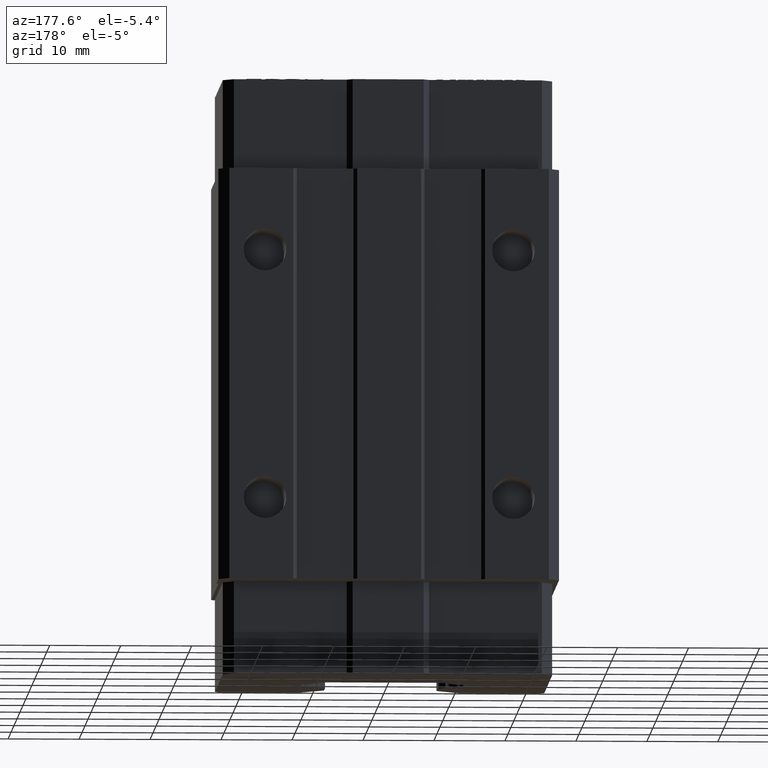
[diagram: clean part render]
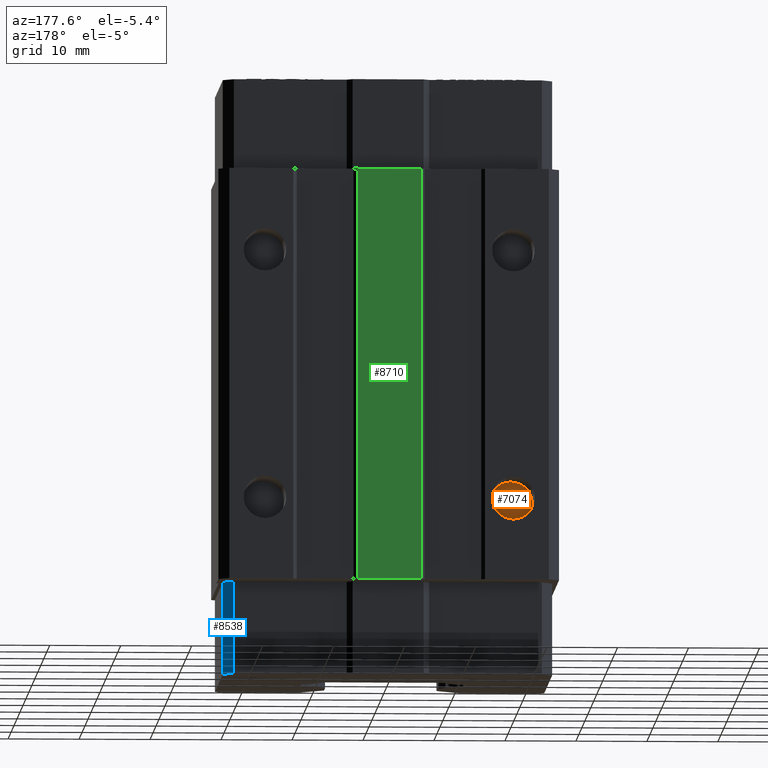
[diagram: same view with three faces highlighted in distinct colors, each labeled with its STEP entity id]
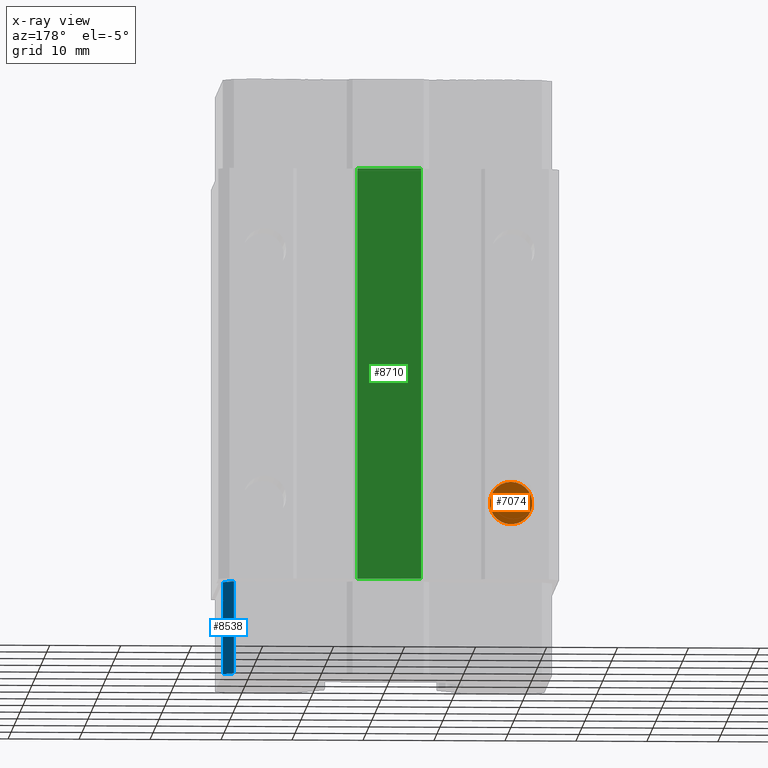
[diagram: x-ray of the same camera — body ghosted, the three highlighted faces saturated]
A machine part, auxiliary view with three faces highlighted in distinct colors.
The next image is the same camera in x-ray (body ghosted, the three faces saturated) — at least one of them is partly hidden behind the body in this view.
Their STEP definitions:

[orange] entity #7074 — the highlighted planar face has unit normal (0, 1, 0).
#1837 = CARTESIAN_POINT ( 'NONE',  ( -17.50000000000000000, 10.00000000000000000, -14.50000000000000200 ) ) ;
#1838 = CARTESIAN_POINT ( 'NONE',  ( -17.50000000000000000, 10.00000000000000000, -20.50000000000000000 ) ) ;
#1839 = DIRECTION ( 'NONE',  ( 0.0000000000000000000, 0.0000000000000000000, 1.000000000000000000 ) ) ;
#1840 = DIRECTION ( 'NONE',  ( 0.0000000000000000000, 1.000000000000000000, 0.0000000000000000000 ) ) ;
#1841 = CARTESIAN_POINT ( 'NONE',  ( -17.50000000000000000, 10.00000000000000000, -17.50000000000000000 ) ) ;
#1842 = AXIS2_PLACEMENT_3D ( 'NONE', #1841, #1840, #1839 ) ;
#1847 = CIRCLE ( 'NONE', #1842, 2.999999999999999100 ) ;
#7027 = ORIENTED_EDGE ( 'NONE', *, *, #8633, .T. ) ;
#7074 = ADVANCED_FACE ( 'NONE', ( #11850 ), #11849, .T. ) ;
#7075 = ORIENTED_EDGE ( 'NONE', *, *, #7079, .T. ) ;
#7079 = EDGE_CURVE ( 'NONE', #8635, #8634, #11906, .T. ) ;
#7088 = EDGE_LOOP ( 'NONE', ( #7075, #7027 ) ) ;
#8633 = EDGE_CURVE ( 'NONE', #8634, #8635, #1847, .T. ) ;
#8634 = VERTEX_POINT ( 'NONE', #1838 ) ;
#8635 = VERTEX_POINT ( 'NONE', #1837 ) ;
#11845 = DIRECTION ( 'NONE',  ( 0.0000000000000000000, 0.0000000000000000000, 1.000000000000000000 ) ) ;
#11846 = DIRECTION ( 'NONE',  ( 0.0000000000000000000, 1.000000000000000000, 0.0000000000000000000 ) ) ;
#11847 = CARTESIAN_POINT ( 'NONE',  ( 0.0000000000000000000, 10.00000000000000000, -29.00000000000000000 ) ) ;
#11848 = AXIS2_PLACEMENT_3D ( 'NONE', #11847, #11846, #11845 ) ;
#11849 = PLANE ( 'NONE',  #11848 ) ;
#11850 = FACE_OUTER_BOUND ( 'NONE', #7088, .T. ) ;
#11902 = DIRECTION ( 'NONE',  ( 0.0000000000000000000, 0.0000000000000000000, 1.000000000000000000 ) ) ;
#11903 = DIRECTION ( 'NONE',  ( 0.0000000000000000000, 1.000000000000000000, 0.0000000000000000000 ) ) ;
#11904 = CARTESIAN_POINT ( 'NONE',  ( -17.50000000000000000, 10.00000000000000000, -17.50000000000000000 ) ) ;
#11905 = AXIS2_PLACEMENT_3D ( 'NONE', #11904, #11903, #11902 ) ;
#11906 = CIRCLE ( 'NONE', #11905, 2.999999999999999100 ) ;

[blue] entity #8538 — the highlighted planar face has unit normal (-0.7071, -0.7071, 0).
#1680 = DIRECTION ( 'NONE',  ( 0.0000000000000000000, 0.0000000000000000000, -1.000000000000000000 ) ) ;
#1681 = VECTOR ( 'NONE', #1680, 1000.000000000000000 ) ;
#1682 = CARTESIAN_POINT ( 'NONE',  ( 23.16570532271000000, 11.53429467932999900, -29.00000000000000000 ) ) ;
#1683 = LINE ( 'NONE', #1682, #1681 ) ;
#1684 = CARTESIAN_POINT ( 'NONE',  ( 23.16570532271000000, 11.53429467932999900, -29.00000000000000000 ) ) ;
#1685 = DIRECTION ( 'NONE',  ( 0.7071067811889039100, -0.7071067811841911200, 0.0000000000000000000 ) ) ;
#1686 = VECTOR ( 'NONE', #1685, 1000.000000000000200 ) ;
#1687 = CARTESIAN_POINT ( 'NONE',  ( 21.66570532284000100, 13.03429467918999900, -29.00000000000000000 ) ) ;
#1688 = LINE ( 'NONE', #1687, #1686 ) ;
#1689 = DIRECTION ( 'NONE',  ( 0.7071067811865474600, -0.7071067811865474600, 0.0000000000000000000 ) ) ;
#1690 = DIRECTION ( 'NONE',  ( -0.7071067811865475700, -0.7071067811865475700, 0.0000000000000000000 ) ) ;
#1691 = CARTESIAN_POINT ( 'NONE',  ( 23.16570532271000000, 11.53429467932999900, -29.00000000000000000 ) ) ;
#1692 = AXIS2_PLACEMENT_3D ( 'NONE', #1691, #1690, #1689 ) ;
#1693 = PLANE ( 'NONE',  #1692 ) ;
#1694 = FACE_OUTER_BOUND ( 'NONE', #8562, .T. ) ;
#1695 = DIRECTION ( 'NONE',  ( 0.0000000000000000000, 0.0000000000000000000, -1.000000000000000000 ) ) ;
#1696 = VECTOR ( 'NONE', #1695, 1000.000000000000000 ) ;
#1697 = CARTESIAN_POINT ( 'NONE',  ( 21.66570532284500000, 13.03429467919499800, -29.00000000000000000 ) ) ;
#1698 = LINE ( 'NONE', #1697, #1696 ) ;
#1722 = CARTESIAN_POINT ( 'NONE',  ( 21.66570532284124800, 13.03429467919125000, -29.00000000000000000 ) ) ;
#7601 = VERTEX_POINT ( 'NONE', #12402 ) ;
#7603 = EDGE_CURVE ( 'NONE', #7601, #7604, #12401, .T. ) ;
#7604 = VERTEX_POINT ( 'NONE', #12397 ) ;
#8537 = EDGE_CURVE ( 'NONE', #8560, #7601, #1698, .T. ) ;
#8538 = ADVANCED_FACE ( 'NONE', ( #1694 ), #1693, .F. ) ;
#8539 = ORIENTED_EDGE ( 'NONE', *, *, #7603, .F. ) ;
#8540 = ORIENTED_EDGE ( 'NONE', *, *, #8537, .F. ) ;
#8541 = ORIENTED_EDGE ( 'NONE', *, *, #8542, .T. ) ;
#8542 = EDGE_CURVE ( 'NONE', #8560, #8543, #1688, .T. ) ;
#8543 = VERTEX_POINT ( 'NONE', #1684 ) ;
#8544 = ORIENTED_EDGE ( 'NONE', *, *, #8545, .T. ) ;
#8545 = EDGE_CURVE ( 'NONE', #8543, #7604, #1683, .T. ) ;
#8560 = VERTEX_POINT ( 'NONE', #1722 ) ;
#8562 = EDGE_LOOP ( 'NONE', ( #8539, #8540, #8541, #8544 ) ) ;
#12397 = CARTESIAN_POINT ( 'NONE',  ( 23.16570532271000000, 11.53429467932999900, -42.00000000000000700 ) ) ;
#12398 = DIRECTION ( 'NONE',  ( 0.7071067811865474600, -0.7071067811865474600, 0.0000000000000000000 ) ) ;
#12399 = VECTOR ( 'NONE', #12398, 1000.000000000000100 ) ;
#12400 = CARTESIAN_POINT ( 'NONE',  ( 23.16570532271000000, 11.53429467932999900, -42.00000000000000700 ) ) ;
#12401 = LINE ( 'NONE', #12400, #12399 ) ;
#12402 = CARTESIAN_POINT ( 'NONE',  ( 21.66570532284125500, 13.03429467919125000, -42.00000000000000700 ) ) ;

[green] entity #8710 — the highlighted planar face has unit normal (0, 1, 0).
#415 = CARTESIAN_POINT ( 'NONE',  ( 4.500000000000000900, 18.00000000000000400, 29.00000000000001400 ) ) ;
#416 = DIRECTION ( 'NONE',  ( 0.0000000000000000000, 0.0000000000000000000, -1.000000000000000000 ) ) ;
#417 = VECTOR ( 'NONE', #416, 1000.000000000000000 ) ;
#418 = CARTESIAN_POINT ( 'NONE',  ( 4.500000000000000900, 18.00000000000000400, -29.00000000000000000 ) ) ;
#419 = LINE ( 'NONE', #418, #417 ) ;
#420 = CARTESIAN_POINT ( 'NONE',  ( 4.500000000000000900, 18.00000000000000400, -29.00000000000000000 ) ) ;
#567 = CARTESIAN_POINT ( 'NONE',  ( -4.500000000000001800, 18.00000000000000400, 29.00000000000002100 ) ) ;
#568 = CARTESIAN_POINT ( 'NONE',  ( -4.500000000000001800, 18.00000000000000400, -29.00000000000000000 ) ) ;
#569 = DIRECTION ( 'NONE',  ( 0.0000000000000000000, 0.0000000000000000000, 1.000000000000000000 ) ) ;
#570 = VECTOR ( 'NONE', #569, 1000.000000000000000 ) ;
#571 = CARTESIAN_POINT ( 'NONE',  ( -4.500000000000000900, 18.00000000000000400, -29.00000000000000000 ) ) ;
#572 = LINE ( 'NONE', #571, #570 ) ;
#1956 = DIRECTION ( 'NONE',  ( -1.000000000000000000, 0.0000000000000000000, 0.0000000000000000000 ) ) ;
#1957 = VECTOR ( 'NONE', #1956, 1000.000000000000000 ) ;
#1958 = CARTESIAN_POINT ( 'NONE',  ( 0.0000000000000000000, 18.00000000000000400, -29.00000000000000000 ) ) ;
#1959 = LINE ( 'NONE', #1958, #1957 ) ;
#1960 = DIRECTION ( 'NONE',  ( 0.0000000000000000000, 0.0000000000000000000, 1.000000000000000000 ) ) ;
#1961 = DIRECTION ( 'NONE',  ( 0.0000000000000000000, 1.000000000000000000, 0.0000000000000000000 ) ) ;
#1962 = CARTESIAN_POINT ( 'NONE',  ( 4.500000000000000900, 18.00000000000000400, -29.00000000000000000 ) ) ;
#1963 = AXIS2_PLACEMENT_3D ( 'NONE', #1962, #1961, #1960 ) ;
#1964 = PLANE ( 'NONE',  #1963 ) ;
#1965 = FACE_OUTER_BOUND ( 'NONE', #8711, .T. ) ;
#2079 = DIRECTION ( 'NONE',  ( -1.000000000000000000, 0.0000000000000000000, 0.0000000000000000000 ) ) ;
#2080 = VECTOR ( 'NONE', #2079, 1000.000000000000000 ) ;
#2081 = CARTESIAN_POINT ( 'NONE',  ( 0.0000000000000000000, 18.00000000000000400, 29.00000000000000000 ) ) ;
#2082 = LINE ( 'NONE', #2081, #2080 ) ;
#7928 = VERTEX_POINT ( 'NONE', #420 ) ;
#7930 = EDGE_CURVE ( 'NONE', #7931, #7928, #419, .T. ) ;
#7931 = VERTEX_POINT ( 'NONE', #415 ) ;
#7989 = EDGE_CURVE ( 'NONE', #7990, #7991, #572, .T. ) ;
#7990 = VERTEX_POINT ( 'NONE', #568 ) ;
#7991 = VERTEX_POINT ( 'NONE', #567 ) ;
#8710 = ADVANCED_FACE ( 'NONE', ( #1965 ), #1964, .T. ) ;
#8711 = EDGE_LOOP ( 'NONE', ( #8712, #8713, #8715, #8771 ) ) ;
#8712 = ORIENTED_EDGE ( 'NONE', *, *, #7930, .T. ) ;
#8713 = ORIENTED_EDGE ( 'NONE', *, *, #8714, .T. ) ;
#8714 = EDGE_CURVE ( 'NONE', #7928, #7990, #1959, .T. ) ;
#8715 = ORIENTED_EDGE ( 'NONE', *, *, #7989, .T. ) ;
#8771 = ORIENTED_EDGE ( 'NONE', *, *, #8772, .F. ) ;
#8772 = EDGE_CURVE ( 'NONE', #7931, #7991, #2082, .T. ) ;